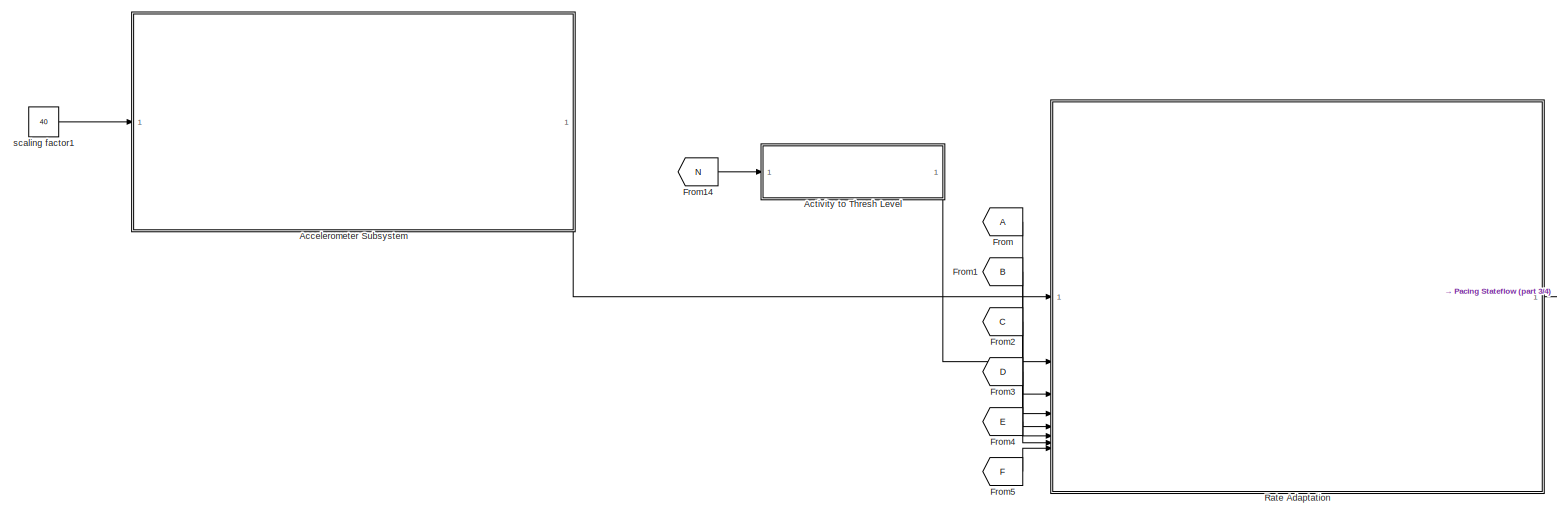
[diagram: root canvas - part 1/4, top left region]
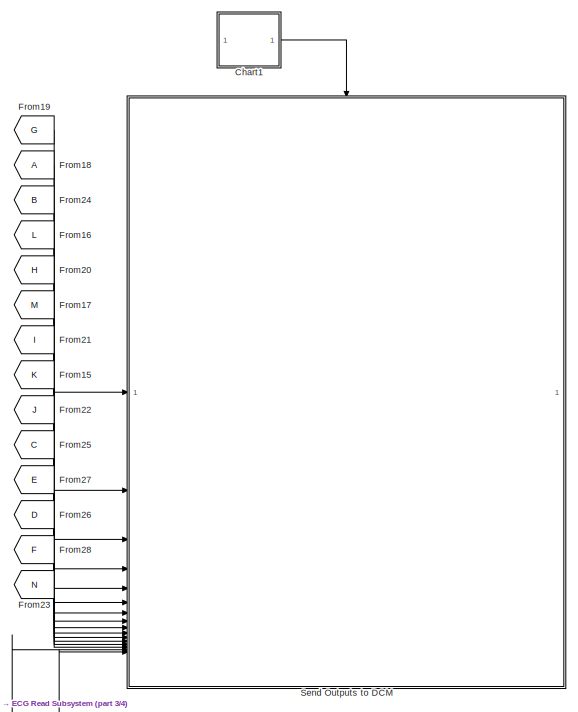
[diagram: root canvas - part 2/4, middle right region]
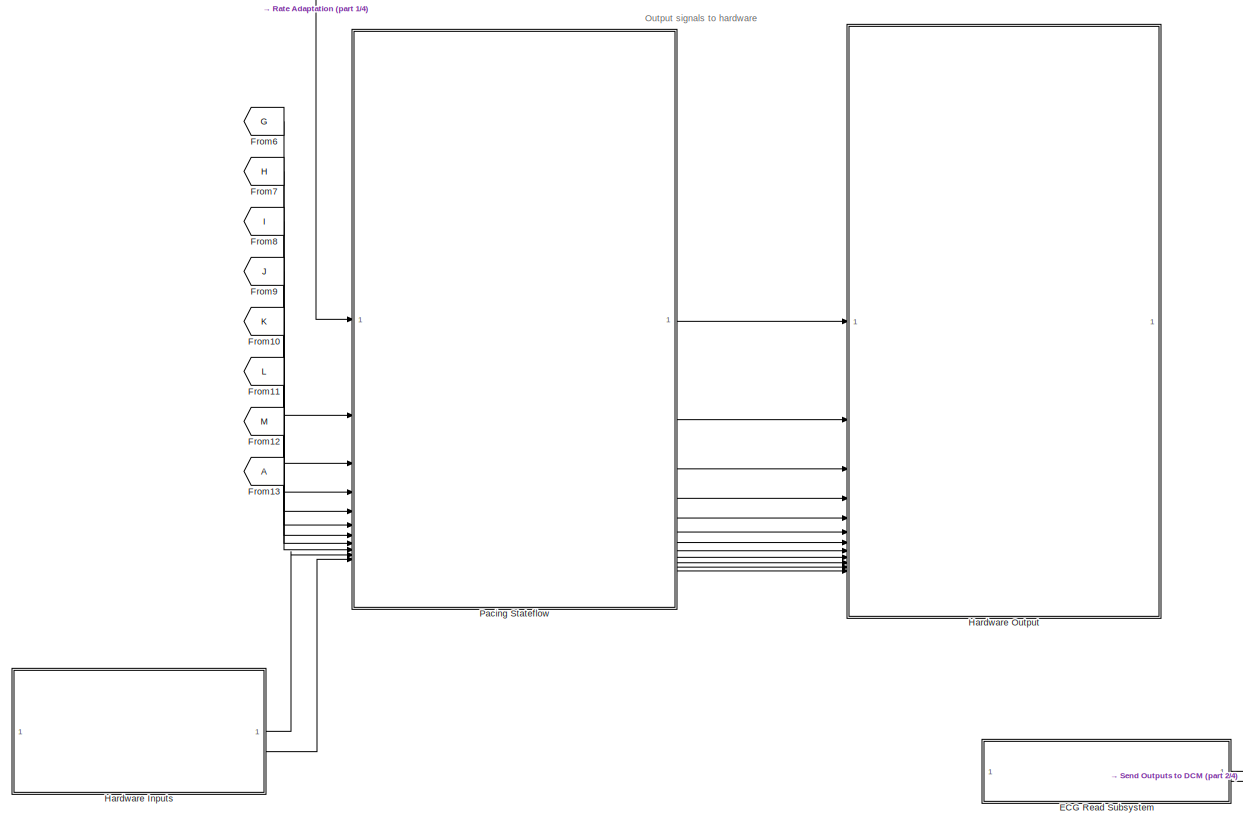
[diagram: root canvas - part 3/4, bottom center region]
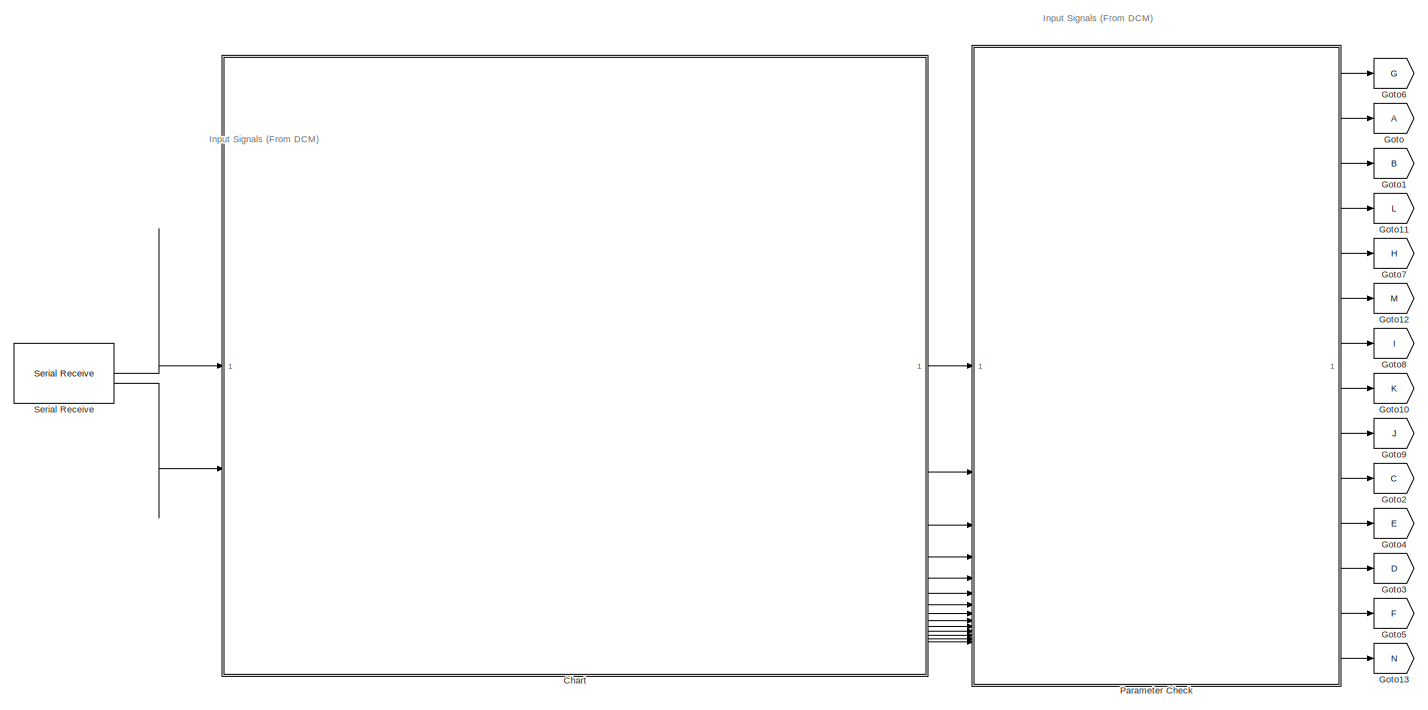
[diagram: root canvas - part 4/4, bottom left region]
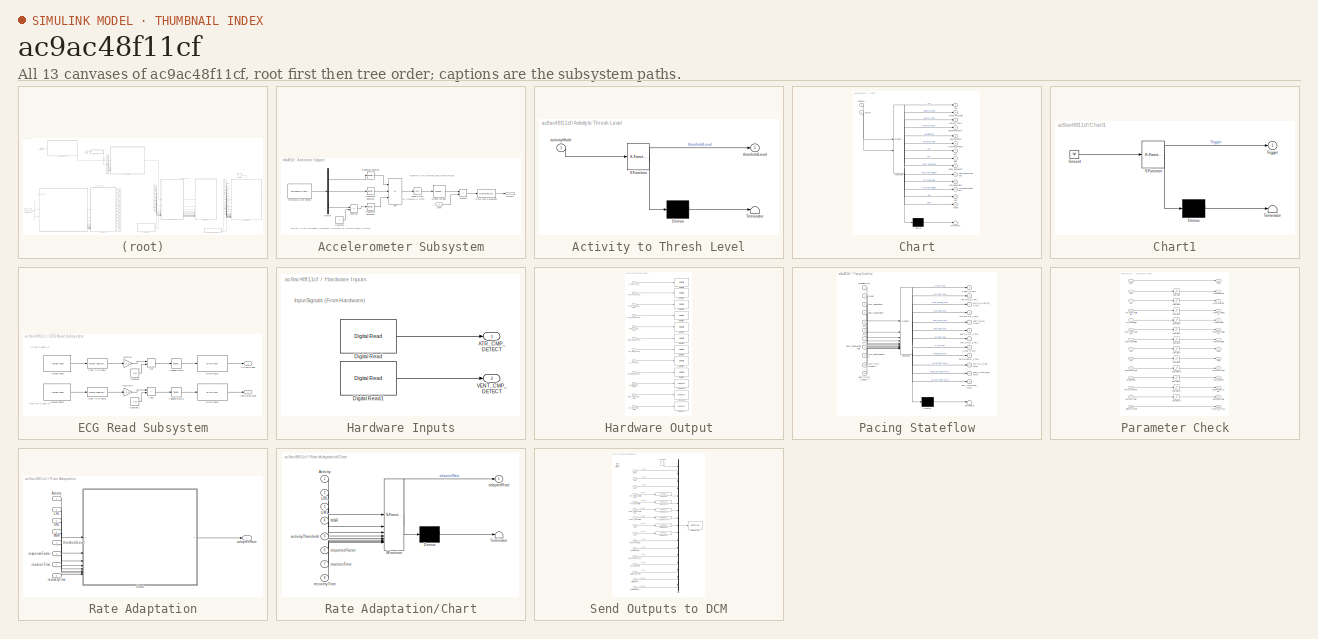
[diagram: thumbnail index - all 13 canvases of the model, root first then tree order]
MODEL slx_ac9ac48f11cf
KIND model
CONFIG AbsTol = auto
CONFIG EnableMultiTasking = on
CONFIG FixedStep = 1e-3
CONFIG MaxStep = auto
CONFIG MinStep = auto
CONFIG RelTol = 1e-3
CONFIG SampleTimeConstraint = Unconstrained
CONFIG SolverName = FixedStepAuto
CONFIG StartTime = 0.0
CONFIG StopTime = 10.0
BLOCK [SubSystem] Accelerometer Subsystem
BLOCK [Sum] Accelerometer Subsystem/Add
  IconShape = rectangular
  Inputs = +++
  OutDataTypeStr = single
BLOCK [Constant] Accelerometer Subsystem/Constant
BLOCK [DataTypeConversion] Accelerometer Subsystem/Data Type Conversion
  OutDataTypeStr = uint8
  RndMeth = Floor
  SaturateOnIntegerOverflow = off
BLOCK [Demux] Accelerometer Subsystem/Demux
  Outputs = 3
BLOCK [Reference] Accelerometer Subsystem/FXOS8700 6-Axes Sensor  REF=frdmk64flib/FXOS8700 6-Axes Sensor
  SourceBlock = frdmk64flib/FXOS8700 6-Axes Sensor
  SourceType = freedomk64f.fxos8700
BLOCK [Inport] Accelerometer Subsystem/Gain
BLOCK [Math] Accelerometer Subsystem/Magnitude Squared
  Operator = magnitude^2
  OutDataTypeStr = single
BLOCK [Math] Accelerometer Subsystem/Magnitude Squared1
  Operator = magnitude^2
  OutDataTypeStr = single
BLOCK [Math] Accelerometer Subsystem/Magnitude Squared2
  Operator = magnitude^2
  OutDataTypeStr = single
BLOCK [Reference] Accelerometer Subsystem/Moving Average  REF=dspstat3/Moving
Average
  SourceBlock = dspstat3/Moving\nAverage
  SourceType = dsp.simulink.MovingAverage
BLOCK [Outport] Accelerometer Subsystem/Outport
  OutDataTypeStr = uint8
BLOCK [Product] Accelerometer Subsystem/Product
BLOCK [Sqrt] Accelerometer Subsystem/Square Root
  OutDataTypeStr = single
BLOCK [Sum] Accelerometer Subsystem/Subtract
  IconShape = rectangular
  Inputs = +-
BLOCK [SubSystem] Activity to Thresh Level
  ErrorFcn = Stateflow.Translate.translate
  PermitHierarchicalResolution = ExplicitOnly
  SFBlockType = Chart
  TreatAsAtomicUnit = on
BLOCK [Demux] Activity to Thresh Level/ Demux 
  Outputs = 1
BLOCK [S-Function] Activity to Thresh Level/ SFunction 
  EnableBusSupport = on
  FunctionName = sf_sfun
  PortCounts = [1 2]
  SFcnIsStateOwnerBlock = off
  SFunctionDeploymentMode = off
  Tag = Stateflow S-Function 1
BLOCK [Terminator] Activity to Thresh Level/ Terminator 
BLOCK [Inport] Activity to Thresh Level/activityMode
BLOCK [Outport] Activity to Thresh Level/thresholdLevel
BLOCK [SubSystem] Chart
  ErrorFcn = Stateflow.Translate.translate
  PermitHierarchicalResolution = ExplicitOnly
  PortSchema = {"entries":[{"content":{"sides":[{"content":{"connectorIds":["In1","In2"]},"type":"ConnectorPlacement.EquallySpacedRectSide","uuid":"5dec20b2-4828-40f7-ab17-581616d768e4"},{"content":{"connectorIds":["Out14","Out1","Out13","Out12","Out11","Out10","Out9","Out8","Out7","Out6","Out5","Out4","Out3","Out2"],"side":"RIGHT"},"type":"ConnectorPlacement.EquallySpacedRectSide","uuid":"fe0d7708-8c60-4078-b2a...<+486ch>
  SFBlockType = Chart
  TreatAsAtomicUnit = on
BLOCK [Demux] Chart/ Demux 
  Outputs = 1
BLOCK [S-Function] Chart/ SFunction 
  EnableBusSupport = on
  FunctionName = sf_sfun
  PortCounts = [2 15]
  SFcnIsStateOwnerBlock = off
  SFunctionDeploymentMode = off
  Tag = Stateflow S-Function 2
BLOCK [Terminator] Chart/ Terminator 
BLOCK [Outport] Chart/ARP
  Port = 7
BLOCK [Outport] Chart/ATR_PulseAmplitude
  Port = 12
BLOCK [Outport] Chart/ATR_PulseWidth
  Port = 11
BLOCK [Outport] Chart/ActivityThreshold
  Port = 2
BLOCK [Outport] Chart/LRL
BLOCK [Outport] Chart/MaxSensorRate
  Port = 6
BLOCK [Outport] Chart/Mode
  Port = 14
BLOCK [Outport] Chart/ReactionTime
  Port = 5
BLOCK [Outport] Chart/RecoveryTime
  Port = 3
BLOCK [Outport] Chart/ResponseFactor
  Port = 4
BLOCK [Inport] Chart/RxData
BLOCK [Inport] Chart/Status
  Port = 2
BLOCK [Outport] Chart/URL
  Port = 13
BLOCK [Outport] Chart/VENT_PulseAmplitude
  Port = 10
BLOCK [Outport] Chart/VENT_PulseWidth
  Port = 9
BLOCK [Outport] Chart/VRP
  Port = 8
BLOCK [SubSystem] Chart1
  ErrorFcn = Stateflow.Translate.translate
  PermitHierarchicalResolution = ExplicitOnly
  SFBlockType = Chart
  TreatAsAtomicUnit = on
BLOCK [Demux] Chart1/ Demux 
  Outputs = 1
BLOCK [Ground] Chart1/ Ground 
BLOCK [S-Function] Chart1/ SFunction 
  EnableBusSupport = on
  FunctionName = sf_sfun
  PortCounts = [1 2]
  SFcnIsStateOwnerBlock = off
  SFunctionDeploymentMode = off
  Tag = Stateflow S-Function 6
BLOCK [Terminator] Chart1/ Terminator 
BLOCK [Outport] Chart1/Trigger
BLOCK [SubSystem] ECG Read Subsystem
BLOCK [Sum] ECG Read Subsystem/Add
  IconShape = rectangular
BLOCK [Sum] ECG Read Subsystem/Add1
  IconShape = rectangular
BLOCK [Reference] ECG Read Subsystem/Analog Input  REF=frdmk64flib/Analog Input
  SourceBlock = frdmk64flib/Analog Input
  SourceType = freedomk64f.AnalogInput
BLOCK [Reference] ECG Read Subsystem/Analog Input1  REF=frdmk64flib/Analog Input
  SourceBlock = frdmk64flib/Analog Input
  SourceType = freedomk64f.AnalogInput
BLOCK [Outport] ECG Read Subsystem/AtriumSignal
BLOCK [Reference] ECG Read Subsystem/Byte Pack2  REF=etargetslib/Byte Pack
  LibrarySourceBlock = embeddedtargetslib/Host Communication/Byte Pack
  SourceBlock = etargetslib/Byte Pack
  SourceType = Byte pack
BLOCK [Reference] ECG Read Subsystem/Byte Pack3  REF=etargetslib/Byte Pack
  LibrarySourceBlock = embeddedtargetslib/Host Communication/Byte Pack
  SourceBlock = etargetslib/Byte Pack
  SourceType = Byte pack
BLOCK [DataTypeConversion] ECG Read Subsystem/Cast To Single
  OutDataTypeStr = single
  RndMeth = Floor
  SaturateOnIntegerOverflow = off
BLOCK [DataTypeConversion] ECG Read Subsystem/Cast To Single1
  OutDataTypeStr = single
  RndMeth = Floor
  SaturateOnIntegerOverflow = off
BLOCK [Constant] ECG Read Subsystem/Constant
  OutDataTypeStr = single
  Value = 1.65
BLOCK [Constant] ECG Read Subsystem/Constant1
  OutDataTypeStr = single
  Value = 1.65
BLOCK [Gain] ECG Read Subsystem/Multiply
  Gain = -3.3
BLOCK [Gain] ECG Read Subsystem/Multiply1
  Gain = -3.3
BLOCK [Reference] ECG Read Subsystem/Tapped Delay  REF=simulink/Discrete/Tapped Delay
  SourceBlock = simulink/Discrete/Tapped Delay
  SourceType = Tapped Delay Line
BLOCK [Reference] ECG Read Subsystem/Tapped Delay1  REF=simulink/Discrete/Tapped Delay
  SourceBlock = simulink/Discrete/Tapped Delay
  SourceType = Tapped Delay Line
BLOCK [Outport] ECG Read Subsystem/VentricleSignal
  Port = 2
BLOCK [From] From
BLOCK [From] From1
  GotoTag = B
BLOCK [From] From10
  GotoTag = K
BLOCK [From] From11
  GotoTag = L
BLOCK [From] From12
  GotoTag = M
BLOCK [From] From13
BLOCK [From] From14
  GotoTag = N
BLOCK [From] From15
  GotoTag = K
BLOCK [From] From16
  GotoTag = L
BLOCK [From] From17
  GotoTag = M
BLOCK [From] From18
BLOCK [From] From19
  GotoTag = G
BLOCK [From] From2
  GotoTag = C
BLOCK [From] From20
  GotoTag = H
BLOCK [From] From21
  GotoTag = I
BLOCK [From] From22
  GotoTag = J
BLOCK [From] From23
  GotoTag = N
BLOCK [From] From24
  GotoTag = B
BLOCK [From] From25
  GotoTag = C
BLOCK [From] From26
  GotoTag = D
BLOCK [From] From27
  GotoTag = E
BLOCK [From] From28
  GotoTag = F
BLOCK [From] From3
  GotoTag = D
BLOCK [From] From4
  GotoTag = E
BLOCK [From] From5
  GotoTag = F
BLOCK [From] From6
  GotoTag = G
BLOCK [From] From7
  GotoTag = H
BLOCK [From] From8
  GotoTag = I
BLOCK [From] From9
  GotoTag = J
BLOCK [Goto] Goto
BLOCK [Goto] Goto1
  GotoTag = B
BLOCK [Goto] Goto10
  GotoTag = K
BLOCK [Goto] Goto11
  GotoTag = L
BLOCK [Goto] Goto12
  GotoTag = M
BLOCK [Goto] Goto13
  GotoTag = N
BLOCK [Goto] Goto2
  GotoTag = C
BLOCK [Goto] Goto3
  GotoTag = D
BLOCK [Goto] Goto4
  GotoTag = E
BLOCK [Goto] Goto5
  GotoTag = F
BLOCK [Goto] Goto6
  GotoTag = G
BLOCK [Goto] Goto7
  GotoTag = H
BLOCK [Goto] Goto8
  GotoTag = I
BLOCK [Goto] Goto9
  GotoTag = J
BLOCK [SubSystem] Hardware Inputs
BLOCK [Outport] Hardware Inputs/ATR_CMP_DETECT
BLOCK [Reference] Hardware Inputs/Digital Read  REF=frdmk64flib/Digital Read
  SourceBlock = frdmk64flib/Digital Read
  SourceType = freedomk64f.DigitalRead
BLOCK [Reference] Hardware Inputs/Digital Read1  REF=frdmk64flib/Digital Read
  SourceBlock = frdmk64flib/Digital Read
  SourceType = freedomk64f.DigitalRead
BLOCK [Outport] Hardware Inputs/VENT_CMP_DETECT
  Port = 2
BLOCK [SubSystem] Hardware Output
BLOCK [Inport] Hardware Output/ATR_CMP_REF_PWM
  Port = 12
BLOCK [Inport] Hardware Output/ATR_GND_CTRL
  Port = 7
BLOCK [Inport] Hardware Output/ATR_PACE_CTRL
  Port = 2
BLOCK [Reference] Hardware Output/Digital Write  REF=frdmk64flib/Digital Write
  SourceBlock = frdmk64flib/Digital Write
  SourceType = freedomk64f.DigitalWrite
BLOCK [Reference] Hardware Output/Digital Write1  REF=frdmk64flib/Digital Write
  SourceBlock = frdmk64flib/Digital Write
  SourceType = freedomk64f.DigitalWrite
BLOCK [Reference] Hardware Output/Digital Write2  REF=frdmk64flib/Digital Write
  SourceBlock = frdmk64flib/Digital Write
  SourceType = freedomk64f.DigitalWrite
BLOCK [Reference] Hardware Output/Digital Write3  REF=frdmk64flib/Digital Write
  SourceBlock = frdmk64flib/Digital Write
  SourceType = freedomk64f.DigitalWrite
BLOCK [Reference] Hardware Output/Digital Write4  REF=frdmk64flib/Digital Write
  SourceBlock = frdmk64flib/Digital Write
  SourceType = freedomk64f.DigitalWrite
BLOCK [Reference] Hardware Output/Digital Write5  REF=frdmk64flib/Digital Write
  SourceBlock = frdmk64flib/Digital Write
  SourceType = freedomk64f.DigitalWrite
BLOCK [Reference] Hardware Output/Digital Write6  REF=frdmk64flib/Digital Write
  SourceBlock = frdmk64flib/Digital Write
  SourceType = freedomk64f.DigitalWrite
BLOCK [Reference] Hardware Output/Digital Write7  REF=frdmk64flib/Digital Write
  SourceBlock = frdmk64flib/Digital Write
  SourceType = freedomk64f.DigitalWrite
BLOCK [Reference] Hardware Output/Digital Write9  REF=frdmk64flib/Digital Write
  SourceBlock = frdmk64flib/Digital Write
  SourceType = freedomk64f.DigitalWrite
BLOCK [Inport] Hardware Output/FRONTEND_CTRL
  Port = 9
BLOCK [Inport] Hardware Output/PACE_CHARGE_CTRL
  Port = 3
BLOCK [Inport] Hardware Output/PACE_GND_CTRL
  Port = 4
BLOCK [Inport] Hardware Output/PACING_REF_PWM
  Port = 10
BLOCK [Reference] Hardware Output/PWM Output  REF=frdmk64flib/PWM Output
  SourceBlock = frdmk64flib/PWM Output
  SourceType = freedomk64f.PWMOutput
BLOCK [Reference] Hardware Output/PWM Output1  REF=frdmk64flib/PWM Output
  SourceBlock = frdmk64flib/PWM Output
  SourceType = freedomk64f.PWMOutput
BLOCK [Reference] Hardware Output/PWM Output2  REF=frdmk64flib/PWM Output
  SourceBlock = frdmk64flib/PWM Output
  SourceType = freedomk64f.PWMOutput
BLOCK [Inport] Hardware Output/VENT_CMP_REF_PWM
  Port = 11
BLOCK [Inport] Hardware Output/VENT_GND_CTRL
  Port = 6
BLOCK [Inport] Hardware Output/VENT_PACE_CTRL
  Port = 5
BLOCK [Inport] Hardware Output/Z_ATR_CTRL
  Port = 8
BLOCK [Inport] Hardware Output/Z_VENT_CTRL
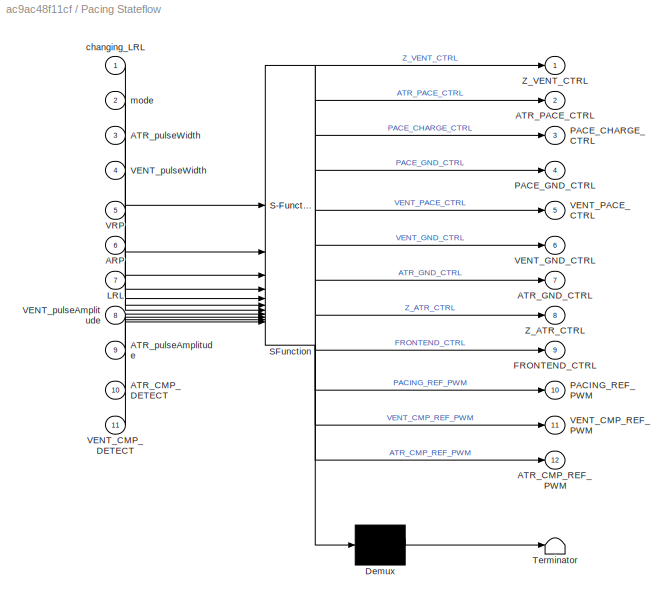
BLOCK [SubSystem] Pacing Stateflow
  ErrorFcn = Stateflow.Translate.translate
  PermitHierarchicalResolution = ExplicitOnly
  PortSchema = {"entries":[{"content":{"sides":[{"content":{"connectorIds":["In1","In2","In3","In4","In6","In5","In9","In8","In7","In10","In11"]},"type":"ConnectorPlacement.EquallySpacedRectSide","uuid":"576c6451-25f7-4bf9-8ba9-b62bfe0038eb"},{"content":{"connectorIds":["Out1","Out2","Out3","Out4","Out5","Out6","Out7","Out8","Out9","Out10","Out11","Out12"],"side":"RIGHT"},"type":"ConnectorPlacement.EquallySpaced...<+526ch>
  SFBlockType = Chart
  TreatAsAtomicUnit = on
BLOCK [Demux] Pacing Stateflow/ Demux 
  Outputs = 1
BLOCK [S-Function] Pacing Stateflow/ SFunction 
  EnableBusSupport = on
  FunctionName = sf_sfun
  PortCounts = [11 13]
  SFcnIsStateOwnerBlock = off
  SFunctionDeploymentMode = off
  Tag = Stateflow S-Function 3
BLOCK [Terminator] Pacing Stateflow/ Terminator 
BLOCK [Inport] Pacing Stateflow/ARP
  Port = 6
BLOCK [Inport] Pacing Stateflow/ATR_CMP_DETECT
  Port = 10
BLOCK [Outport] Pacing Stateflow/ATR_CMP_REF_PWM
  Port = 12
BLOCK [Outport] Pacing Stateflow/ATR_GND_CTRL
  Port = 7
BLOCK [Outport] Pacing Stateflow/ATR_PACE_CTRL
  Port = 2
BLOCK [Inport] Pacing Stateflow/ATR_pulseAmplitude
  Port = 9
BLOCK [Inport] Pacing Stateflow/ATR_pulseWidth
  Port = 3
BLOCK [Outport] Pacing Stateflow/FRONTEND_CTRL
  Port = 9
BLOCK [Inport] Pacing Stateflow/LRL
  Port = 7
BLOCK [Outport] Pacing Stateflow/PACE_CHARGE_CTRL
  Port = 3
BLOCK [Outport] Pacing Stateflow/PACE_GND_CTRL
  Port = 4
BLOCK [Outport] Pacing Stateflow/PACING_REF_PWM
  Port = 10
BLOCK [Inport] Pacing Stateflow/VENT_CMP_DETECT
  Port = 11
BLOCK [Outport] Pacing Stateflow/VENT_CMP_REF_PWM
  Port = 11
BLOCK [Outport] Pacing Stateflow/VENT_GND_CTRL
  Port = 6
BLOCK [Outport] Pacing Stateflow/VENT_PACE_CTRL
  Port = 5
BLOCK [Inport] Pacing Stateflow/VENT_pulseAmplitude
  Port = 8
BLOCK [Inport] Pacing Stateflow/VENT_pulseWidth
  Port = 4
BLOCK [Inport] Pacing Stateflow/VRP
  Port = 5
BLOCK [Outport] Pacing Stateflow/Z_ATR_CTRL
  Port = 8
BLOCK [Outport] Pacing Stateflow/Z_VENT_CTRL
BLOCK [Inport] Pacing Stateflow/changing_LRL
BLOCK [Inport] Pacing Stateflow/mode
  Port = 2
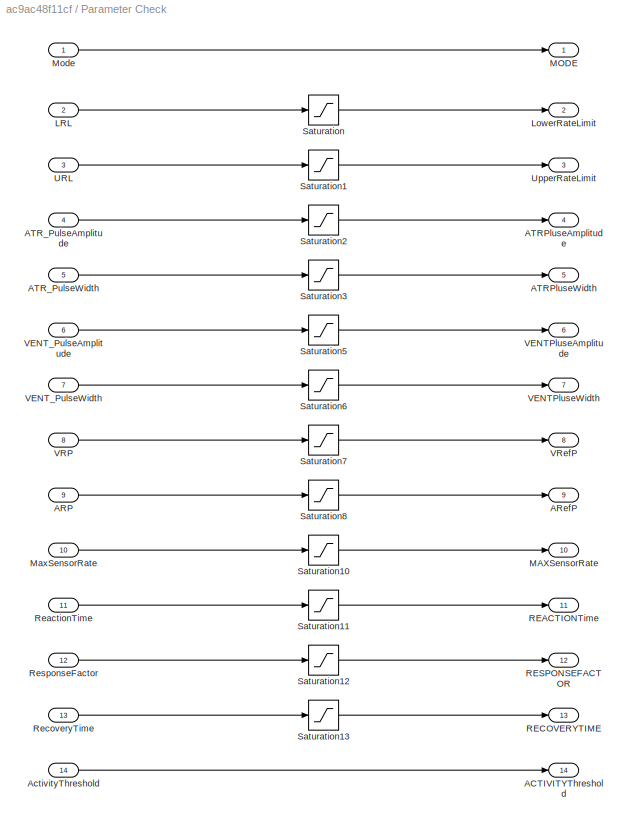
BLOCK [SubSystem] Parameter Check
BLOCK [Outport] Parameter Check/ACTIVITYThreshold
  Port = 14
BLOCK [Inport] Parameter Check/ARP
  Port = 9
BLOCK [Outport] Parameter Check/ARefP
  Port = 9
BLOCK [Outport] Parameter Check/ATRPluseAmplitude
  OutDataTypeStr = single
  Port = 4
BLOCK [Outport] Parameter Check/ATRPluseWidth
  Port = 5
BLOCK [Inport] Parameter Check/ATR_PulseAmplitude 
  OutDataTypeStr = single
  Port = 4
BLOCK [Inport] Parameter Check/ATR_PulseWidth 
  Port = 5
BLOCK [Inport] Parameter Check/ActivityThreshold 
  Port = 14
BLOCK [Inport] Parameter Check/LRL
  Port = 2
BLOCK [Outport] Parameter Check/LowerRateLimit
  Port = 2
BLOCK [Outport] Parameter Check/MAXSensorRate
  Port = 10
BLOCK [Outport] Parameter Check/MODE
BLOCK [Inport] Parameter Check/MaxSensorRate 
  Port = 10
BLOCK [Inport] Parameter Check/Mode
BLOCK [Outport] Parameter Check/REACTIONTime
  Port = 11
BLOCK [Outport] Parameter Check/RECOVERYTIME
  Port = 13
BLOCK [Outport] Parameter Check/RESPONSEFACTOR
  Port = 12
BLOCK [Inport] Parameter Check/ReactionTime 
  Port = 11
BLOCK [Inport] Parameter Check/RecoveryTime 
  Port = 13
BLOCK [Inport] Parameter Check/ResponseFactor 
  Port = 12
BLOCK [Saturate] Parameter Check/Saturation
  LowerLimit = 30
  UpperLimit = 175
BLOCK [Saturate] Parameter Check/Saturation1
  LowerLimit = 60
  UpperLimit = 175
BLOCK [Saturate] Parameter Check/Saturation10
  LowerLimit = 50
  UpperLimit = 175
BLOCK [Saturate] Parameter Check/Saturation11
  LowerLimit = 10
  UpperLimit = 50
BLOCK [Saturate] Parameter Check/Saturation12
  LowerLimit = 1
  UpperLimit = 16
BLOCK [Saturate] Parameter Check/Saturation13
  LowerLimit = 2
  UpperLimit = 16
BLOCK [Saturate] Parameter Check/Saturation2
  LowerLimit = 0.5
  UpperLimit = 5
BLOCK [Saturate] Parameter Check/Saturation3
  LowerLimit = 0.05
  UpperLimit = 1.9
BLOCK [Saturate] Parameter Check/Saturation5
  LowerLimit = 0.5
  UpperLimit = 5
BLOCK [Saturate] Parameter Check/Saturation6
  LowerLimit = 0.05
  UpperLimit = 1.9
BLOCK [Saturate] Parameter Check/Saturation7
  LowerLimit = 150
  UpperLimit = 500
BLOCK [Saturate] Parameter Check/Saturation8
  LowerLimit = 150
  UpperLimit = 500
BLOCK [Inport] Parameter Check/URL
  Port = 3
BLOCK [Outport] Parameter Check/UpperRateLimit
  Port = 3
BLOCK [Outport] Parameter Check/VENTPluseAmplitude
  Port = 6
BLOCK [Outport] Parameter Check/VENTPluseWidth
  Port = 7
BLOCK [Inport] Parameter Check/VENT_PulseAmplitude 
  Port = 6
BLOCK [Inport] Parameter Check/VENT_PulseWidth 
  Port = 7
BLOCK [Inport] Parameter Check/VRP
  Port = 8
BLOCK [Outport] Parameter Check/VRefP
  Port = 8
BLOCK [SubSystem] Rate Adaptation
BLOCK [Inport] Rate Adaptation/Activity
  OutDataTypeStr = uint8
BLOCK [SubSystem] Rate Adaptation/Chart
  ErrorFcn = Stateflow.Translate.translate
  PermitHierarchicalResolution = ExplicitOnly
  SFBlockType = Chart
  TreatAsAtomicUnit = on
BLOCK [Demux] Rate Adaptation/Chart/ Demux 
  Outputs = 1
BLOCK [S-Function] Rate Adaptation/Chart/ SFunction 
  EnableBusSupport = on
  FunctionName = sf_sfun
  PortCounts = [8 2]
  SFcnIsStateOwnerBlock = off
  SFunctionDeploymentMode = off
  Tag = Stateflow S-Function 5
BLOCK [Terminator] Rate Adaptation/Chart/ Terminator 
BLOCK [Inport] Rate Adaptation/Chart/Activity
BLOCK [Inport] Rate Adaptation/Chart/LRL
  Port = 2
BLOCK [Inport] Rate Adaptation/Chart/MSR
  Port = 4
BLOCK [Inport] Rate Adaptation/Chart/URL
  Port = 3
BLOCK [Inport] Rate Adaptation/Chart/activityThreshold
  Port = 5
BLOCK [Outport] Rate Adaptation/Chart/adaptedRate
BLOCK [Inport] Rate Adaptation/Chart/reactionTime
  Port = 7
BLOCK [Inport] Rate Adaptation/Chart/recoveryTime
  Port = 8
BLOCK [Inport] Rate Adaptation/Chart/responseFactor
  Port = 6
BLOCK [Inport] Rate Adaptation/LRL
  OutDataTypeStr = uint8
  Port = 3
BLOCK [Inport] Rate Adaptation/MSR
  Port = 5
BLOCK [Inport] Rate Adaptation/URL
  OutDataTypeStr = uint8
  Port = 4
BLOCK [Outport] Rate Adaptation/adaptedRate
BLOCK [Inport] Rate Adaptation/reactionTime
  Port = 7
BLOCK [Inport] Rate Adaptation/recoveryTime
  Port = 8
BLOCK [Inport] Rate Adaptation/responseFactor
  Port = 6
BLOCK [Inport] Rate Adaptation/thresholdLevel
  Port = 2
BLOCK [SubSystem] Send Outputs to DCM
BLOCK [Inport] Send Outputs to DCM/ARP
  Port = 9
BLOCK [Inport] Send Outputs to DCM/ATR_PulseAmplitude
  OutDataTypeStr = single
  Port = 4
BLOCK [Inport] Send Outputs to DCM/ATR_PulseWidth
  OutDataTypeStr = single
  Port = 5
BLOCK [Inport] Send Outputs to DCM/ActivityThreshold
  Port = 14
BLOCK [Inport] Send Outputs to DCM/AtriumSignal
  Port = 15
BLOCK [Reference] Send Outputs to DCM/Byte Pack  REF=etargetslib/Byte Pack
  LibrarySourceBlock = embeddedtargetslib/Host Communication/Byte Pack
  SourceBlock = etargetslib/Byte Pack
  SourceType = Byte pack
BLOCK [Reference] Send Outputs to DCM/Byte Pack1  REF=etargetslib/Byte Pack
  LibrarySourceBlock = embeddedtargetslib/Host Communication/Byte Pack
  SourceBlock = etargetslib/Byte Pack
  SourceType = Byte pack
BLOCK [Reference] Send Outputs to DCM/Byte Pack3  REF=etargetslib/Byte Pack
  LibrarySourceBlock = embeddedtargetslib/Host Communication/Byte Pack
  SourceBlock = etargetslib/Byte Pack
  SourceType = Byte pack
BLOCK [Reference] Send Outputs to DCM/Byte Pack4  REF=etargetslib/Byte Pack
  LibrarySourceBlock = embeddedtargetslib/Host Communication/Byte Pack
  SourceBlock = etargetslib/Byte Pack
  SourceType = Byte pack
BLOCK [Reference] Send Outputs to DCM/Byte Pack6  REF=etargetslib/Byte Pack
  LibrarySourceBlock = embeddedtargetslib/Host Communication/Byte Pack
  SourceBlock = etargetslib/Byte Pack
  SourceType = Byte pack
BLOCK [Reference] Send Outputs to DCM/Byte Pack7  REF=etargetslib/Byte Pack
  LibrarySourceBlock = embeddedtargetslib/Host Communication/Byte Pack
  SourceBlock = etargetslib/Byte Pack
  SourceType = Byte pack
BLOCK [Inport] Send Outputs to DCM/LRL
  Port = 2
BLOCK [Inport] Send Outputs to DCM/MaxSensorRate
  Port = 10
BLOCK [Inport] Send Outputs to DCM/Mode
BLOCK [Mux] Send Outputs to DCM/Mux
  DisplayOption = bar
  Inputs = 17
BLOCK [Inport] Send Outputs to DCM/ReactionTime
  Port = 11
BLOCK [Inport] Send Outputs to DCM/RecoveryTime
  Port = 13
BLOCK [Inport] Send Outputs to DCM/ResponseFactor
  Port = 12
BLOCK [Reference] Send Outputs to DCM/Serial Transmit  REF=frdmk64flib/Serial Transmit
  SourceBlock = frdmk64flib/Serial Transmit
  SourceType = freedomk64f.SCIWrite
BLOCK [Constant] Send Outputs to DCM/Sync Byte
  OutDataTypeStr = uint8
  Value = 7
BLOCK [TriggerPort] Send Outputs to DCM/Trigger
  FunctionName = UART_Tx
  PortDimensions = 1
  StatesWhenEnabling = held
  VariantControl = (inherit)
BLOCK [Inport] Send Outputs to DCM/URL
  Port = 3
BLOCK [Inport] Send Outputs to DCM/VENT_PulseAmplitude
  Port = 6
BLOCK [Inport] Send Outputs to DCM/VENT_PulseWidth
  Port = 7
BLOCK [Inport] Send Outputs to DCM/VRP
  Port = 8
BLOCK [Inport] Send Outputs to DCM/VentricleSignal
  Port = 16
BLOCK [Reference] Serial Receive  REF=frdmk64flib/Serial Receive
  SourceBlock = frdmk64flib/Serial Receive
  SourceType = freedomk64f.SCIRead
BLOCK [Constant] scaling factor1
  Value = 40
ANNOTATION (root): Output signals to hardware
ANNOTATION (root): Input Signals (From DCM)
ANNOTATION Accelerometer Subsystem: subtract 1 from normalized z component to account for constant impact of gravity
ANNOTATION Accelerometer Subsystem: get magnitude of activity
ANNOTATION Accelerometer Subsystem: implement rate smoothing using moving average
ANNOTATION ECG Read Subsystem: Ventricle Signal In
ANNOTATION ECG Read Subsystem: Atrium Signal In
ANNOTATION Hardware Inputs: Input Signals (From Hardware)
ANNOTATION Send Outputs to DCM: 1 byte
ANNOTATION Send Outputs to DCM: 40 bytes
ANNOTATION Send Outputs to DCM: 2 bytes
ANNOTATION Send Outputs to DCM: 4 bytes
LINE Accelerometer Subsystem/Add:1 -> Accelerometer Subsystem/Square Root:1
LINE Accelerometer Subsystem/Constant:1 -> Accelerometer Subsystem/Subtract:2
LINE Accelerometer Subsystem/Data Type Conversion:1 -> Accelerometer Subsystem/Outport:1
LINE Accelerometer Subsystem/Demux:1 -> Accelerometer Subsystem/Magnitude Squared:1
LINE Accelerometer Subsystem/Demux:2 -> Accelerometer Subsystem/Magnitude Squared1:1
LINE Accelerometer Subsystem/Demux:3 -> Accelerometer Subsystem/Subtract:1
LINE Accelerometer Subsystem/FXOS8700 6-Axes Sensor:1 -> Accelerometer Subsystem/Demux:1
LINE Accelerometer Subsystem/Gain:1 -> Accelerometer Subsystem/Product:2
LINE Accelerometer Subsystem/Magnitude Squared1:1 -> Accelerometer Subsystem/Add:2
LINE Accelerometer Subsystem/Magnitude Squared2:1 -> Accelerometer Subsystem/Add:3
LINE Accelerometer Subsystem/Magnitude Squared:1 -> Accelerometer Subsystem/Add:1
LINE Accelerometer Subsystem/Moving Average:1 -> Accelerometer Subsystem/Product:1
LINE Accelerometer Subsystem/Product:1 -> Accelerometer Subsystem/Data Type Conversion:1
LINE Accelerometer Subsystem/Square Root:1 -> Accelerometer Subsystem/Moving Average:1
LINE Accelerometer Subsystem/Subtract:1 -> Accelerometer Subsystem/Magnitude Squared2:1
LINE Accelerometer Subsystem:1 -> Rate Adaptation:1
LINE Activity to Thresh Level:1 -> Rate Adaptation:2
LINE Chart1:1 -> Send Outputs to DCM:trigger
LINE Chart:1 -> Parameter Check:2
LINE Chart:10 -> Parameter Check:6
LINE Chart:11 -> Parameter Check:5
LINE Chart:12 -> Parameter Check:4
LINE Chart:13 -> Parameter Check:3
LINE Chart:14 -> Parameter Check:1
LINE Chart:2 -> Parameter Check:14
LINE Chart:3 -> Parameter Check:13
LINE Chart:4 -> Parameter Check:12
LINE Chart:5 -> Parameter Check:11
LINE Chart:6 -> Parameter Check:10
LINE Chart:7 -> Parameter Check:9
LINE Chart:8 -> Parameter Check:8
LINE Chart:9 -> Parameter Check:7
LINE ECG Read Subsystem/Add1:1 -> ECG Read Subsystem/Tapped Delay1:1
LINE ECG Read Subsystem/Add:1 -> ECG Read Subsystem/Tapped Delay:1
LINE ECG Read Subsystem/Analog Input1:1 -> ECG Read Subsystem/Cast To Single1:1
LINE ECG Read Subsystem/Analog Input:1 -> ECG Read Subsystem/Cast To Single:1
LINE ECG Read Subsystem/Byte Pack2:1 -> ECG Read Subsystem/AtriumSignal:1
LINE ECG Read Subsystem/Byte Pack3:1 -> ECG Read Subsystem/VentricleSignal:1
LINE ECG Read Subsystem/Cast To Single1:1 -> ECG Read Subsystem/Multiply1:1
LINE ECG Read Subsystem/Cast To Single:1 -> ECG Read Subsystem/Multiply:1
LINE ECG Read Subsystem/Constant1:1 -> ECG Read Subsystem/Add1:2
LINE ECG Read Subsystem/Constant:1 -> ECG Read Subsystem/Add:2
LINE ECG Read Subsystem/Multiply1:1 -> ECG Read Subsystem/Add1:1
LINE ECG Read Subsystem/Multiply:1 -> ECG Read Subsystem/Add:1
LINE ECG Read Subsystem/Tapped Delay1:1 -> ECG Read Subsystem/Byte Pack3:1
LINE ECG Read Subsystem/Tapped Delay:1 -> ECG Read Subsystem/Byte Pack2:1
LINE ECG Read Subsystem:1 -> Send Outputs to DCM:15
LINE ECG Read Subsystem:2 -> Send Outputs to DCM:16
LINE From10:1 -> Pacing Stateflow:5
LINE From11:1 -> Pacing Stateflow:9
LINE From12:1 -> Pacing Stateflow:8
LINE From13:1 -> Pacing Stateflow:7
LINE From14:1 -> Activity to Thresh Level:1
LINE From15:1 -> Send Outputs to DCM:8
LINE From16:1 -> Send Outputs to DCM:4
LINE From17:1 -> Send Outputs to DCM:6
LINE From18:1 -> Send Outputs to DCM:2
LINE From19:1 -> Send Outputs to DCM:1
LINE From1:1 -> Rate Adaptation:4
LINE From20:1 -> Send Outputs to DCM:5
LINE From21:1 -> Send Outputs to DCM:7
LINE From22:1 -> Send Outputs to DCM:9
LINE From23:1 -> Send Outputs to DCM:14
LINE From24:1 -> Send Outputs to DCM:3
LINE From25:1 -> Send Outputs to DCM:10
LINE From26:1 -> Send Outputs to DCM:12
LINE From27:1 -> Send Outputs to DCM:11
LINE From28:1 -> Send Outputs to DCM:13
LINE From2:1 -> Rate Adaptation:5
LINE From3:1 -> Rate Adaptation:6
LINE From4:1 -> Rate Adaptation:7
LINE From5:1 -> Rate Adaptation:8
LINE From6:1 -> Pacing Stateflow:2
LINE From7:1 -> Pacing Stateflow:3
LINE From8:1 -> Pacing Stateflow:4
LINE From9:1 -> Pacing Stateflow:6
LINE From:1 -> Rate Adaptation:3
LINE Hardware Inputs/Digital Read1:1 -> Hardware Inputs/VENT_CMP_DETECT:1
LINE Hardware Inputs/Digital Read:1 -> Hardware Inputs/ATR_CMP_DETECT:1
LINE Hardware Inputs:1 -> Pacing Stateflow:10
LINE Hardware Inputs:2 -> Pacing Stateflow:11
LINE Hardware Output/ATR_CMP_REF_PWM:1 -> Hardware Output/PWM Output:1
LINE Hardware Output/ATR_GND_CTRL:1 -> Hardware Output/Digital Write6:1
LINE Hardware Output/ATR_PACE_CTRL:1 -> Hardware Output/Digital Write1:1
LINE Hardware Output/FRONTEND_CTRL:1 -> Hardware Output/Digital Write9:1
LINE Hardware Output/PACE_CHARGE_CTRL:1 -> Hardware Output/Digital Write2:1
LINE Hardware Output/PACE_GND_CTRL:1 -> Hardware Output/Digital Write3:1
LINE Hardware Output/PACING_REF_PWM:1 -> Hardware Output/PWM Output2:1
LINE Hardware Output/VENT_CMP_REF_PWM:1 -> Hardware Output/PWM Output1:1
LINE Hardware Output/VENT_GND_CTRL:1 -> Hardware Output/Digital Write5:1
LINE Hardware Output/VENT_PACE_CTRL:1 -> Hardware Output/Digital Write4:1
LINE Hardware Output/Z_ATR_CTRL:1 -> Hardware Output/Digital Write7:1
LINE Hardware Output/Z_VENT_CTRL:1 -> Hardware Output/Digital Write:1
LINE Pacing Stateflow:1 -> Hardware Output:1
LINE Pacing Stateflow:10 -> Hardware Output:10
LINE Pacing Stateflow:11 -> Hardware Output:11
LINE Pacing Stateflow:12 -> Hardware Output:12
LINE Pacing Stateflow:2 -> Hardware Output:2
LINE Pacing Stateflow:3 -> Hardware Output:3
LINE Pacing Stateflow:4 -> Hardware Output:4
LINE Pacing Stateflow:5 -> Hardware Output:5
LINE Pacing Stateflow:6 -> Hardware Output:6
LINE Pacing Stateflow:7 -> Hardware Output:7
LINE Pacing Stateflow:8 -> Hardware Output:8
LINE Pacing Stateflow:9 -> Hardware Output:9
LINE Parameter Check/ARP:1 -> Parameter Check/Saturation8:1
LINE Parameter Check/ATR_PulseAmplitude :1 -> Parameter Check/Saturation2:1
LINE Parameter Check/ATR_PulseWidth :1 -> Parameter Check/Saturation3:1
LINE Parameter Check/ActivityThreshold :1 -> Parameter Check/ACTIVITYThreshold:1
LINE Parameter Check/LRL:1 -> Parameter Check/Saturation:1
LINE Parameter Check/MaxSensorRate :1 -> Parameter Check/Saturation10:1
LINE Parameter Check/Mode:1 -> Parameter Check/MODE:1
LINE Parameter Check/ReactionTime :1 -> Parameter Check/Saturation11:1
LINE Parameter Check/RecoveryTime :1 -> Parameter Check/Saturation13:1
LINE Parameter Check/ResponseFactor :1 -> Parameter Check/Saturation12:1
LINE Parameter Check/Saturation10:1 -> Parameter Check/MAXSensorRate:1
LINE Parameter Check/Saturation11:1 -> Parameter Check/REACTIONTime:1
LINE Parameter Check/Saturation12:1 -> Parameter Check/RESPONSEFACTOR:1
LINE Parameter Check/Saturation13:1 -> Parameter Check/RECOVERYTIME:1
LINE Parameter Check/Saturation1:1 -> Parameter Check/UpperRateLimit:1
LINE Parameter Check/Saturation2:1 -> Parameter Check/ATRPluseAmplitude:1
LINE Parameter Check/Saturation3:1 -> Parameter Check/ATRPluseWidth:1
LINE Parameter Check/Saturation5:1 -> Parameter Check/VENTPluseAmplitude:1
LINE Parameter Check/Saturation6:1 -> Parameter Check/VENTPluseWidth:1
LINE Parameter Check/Saturation7:1 -> Parameter Check/VRefP:1
LINE Parameter Check/Saturation8:1 -> Parameter Check/ARefP:1
LINE Parameter Check/Saturation:1 -> Parameter Check/LowerRateLimit:1
LINE Parameter Check/URL:1 -> Parameter Check/Saturation1:1
LINE Parameter Check/VENT_PulseAmplitude :1 -> Parameter Check/Saturation5:1
LINE Parameter Check/VENT_PulseWidth :1 -> Parameter Check/Saturation6:1
LINE Parameter Check/VRP:1 -> Parameter Check/Saturation7:1
LINE Parameter Check:1 -> Goto6:1
LINE Parameter Check:10 -> Goto2:1
LINE Parameter Check:11 -> Goto4:1
LINE Parameter Check:12 -> Goto3:1
LINE Parameter Check:13 -> Goto5:1
LINE Parameter Check:14 -> Goto13:1
LINE Parameter Check:2 -> Goto:1
LINE Parameter Check:3 -> Goto1:1
LINE Parameter Check:4 -> Goto11:1
LINE Parameter Check:5 -> Goto7:1
LINE Parameter Check:6 -> Goto12:1
LINE Parameter Check:7 -> Goto8:1
LINE Parameter Check:8 -> Goto10:1
LINE Parameter Check:9 -> Goto9:1
LINE Rate Adaptation/Activity:1 -> Rate Adaptation/Chart:1
LINE Rate Adaptation/Chart:1 -> Rate Adaptation/adaptedRate:1
LINE Rate Adaptation/LRL:1 -> Rate Adaptation/Chart:2
LINE Rate Adaptation/MSR:1 -> Rate Adaptation/Chart:4
LINE Rate Adaptation/URL:1 -> Rate Adaptation/Chart:3
LINE Rate Adaptation/reactionTime:1 -> Rate Adaptation/Chart:7
LINE Rate Adaptation/recoveryTime:1 -> Rate Adaptation/Chart:8
LINE Rate Adaptation/responseFactor:1 -> Rate Adaptation/Chart:6
LINE Rate Adaptation/thresholdLevel:1 -> Rate Adaptation/Chart:5
LINE Rate Adaptation:1 -> Pacing Stateflow:1
LINE Send Outputs to DCM/ARP:1 -> Send Outputs to DCM/Byte Pack7:1
LINE Send Outputs to DCM/ATR_PulseAmplitude:1 -> Send Outputs to DCM/Byte Pack:1
LINE Send Outputs to DCM/ATR_PulseWidth:1 -> Send Outputs to DCM/Byte Pack1:1
LINE Send Outputs to DCM/ActivityThreshold:1 -> Send Outputs to DCM/Mux:15
LINE Send Outputs to DCM/AtriumSignal:1 -> Send Outputs to DCM/Mux:16
LINE Send Outputs to DCM/Byte Pack1:1 -> Send Outputs to DCM/Mux:6
LINE Send Outputs to DCM/Byte Pack3:1 -> Send Outputs to DCM/Mux:7
LINE Send Outputs to DCM/Byte Pack4:1 -> Send Outputs to DCM/Mux:8
LINE Send Outputs to DCM/Byte Pack6:1 -> Send Outputs to DCM/Mux:9
LINE Send Outputs to DCM/Byte Pack7:1 -> Send Outputs to DCM/Mux:10
LINE Send Outputs to DCM/Byte Pack:1 -> Send Outputs to DCM/Mux:5
LINE Send Outputs to DCM/LRL:1 -> Send Outputs to DCM/Mux:3
LINE Send Outputs to DCM/MaxSensorRate:1 -> Send Outputs to DCM/Mux:11
LINE Send Outputs to DCM/Mode:1 -> Send Outputs to DCM/Mux:2
LINE Send Outputs to DCM/Mux:1 -> Send Outputs to DCM/Serial Transmit:1
LINE Send Outputs to DCM/ReactionTime:1 -> Send Outputs to DCM/Mux:12
LINE Send Outputs to DCM/RecoveryTime:1 -> Send Outputs to DCM/Mux:14
LINE Send Outputs to DCM/ResponseFactor:1 -> Send Outputs to DCM/Mux:13
LINE Send Outputs to DCM/Sync Byte:1 -> Send Outputs to DCM/Mux:1
LINE Send Outputs to DCM/URL:1 -> Send Outputs to DCM/Mux:4
LINE Send Outputs to DCM/VENT_PulseAmplitude:1 -> Send Outputs to DCM/Byte Pack3:1
LINE Send Outputs to DCM/VENT_PulseWidth:1 -> Send Outputs to DCM/Byte Pack4:1
LINE Send Outputs to DCM/VRP:1 -> Send Outputs to DCM/Byte Pack6:1
LINE Send Outputs to DCM/VentricleSignal:1 -> Send Outputs to DCM/Mux:17
LINE Serial Receive:1 -> Chart:1
LINE Serial Receive:2 -> Chart:2
LINE scaling factor1:1 -> Accelerometer Subsystem:1
CHART Activity to Thresh Level states=1 transitions=2
  STATE_LABEL 'Activity_to_Threshold\nentry:\n%very low\nif activityMode == 0\n    thresholdLevel = 5;\nend\n%low\nif activityMode == 1\n    thresholdLevel = 13;\nend\n%med low\nif activityMode == 2\n    thresholdLevel = 21;\nend\n%med\nif activityMode == 3\n    thresholdLevel = 29;\nend\n%med high\nif activityMode == 4\n    thresholdLevel = 37;\nend\n%high\nif activityMode == 5\n    thresholdLevel = 45;\nend\n%very high\nif activityMode ...<+33ch>'
CHART Chart states=7 transitions=8
  STATE_LABEL '<!DOCTYPE HTML PUBLIC "-//W3C//DTD HTML 4.0//EN" "http://www.w3.org/TR/REC-html40/strict.dtd">\n<html><head><meta name="qrichtext" content="1" /><style type="text/css">\np, li { white-space: pre-wrap; }\n</style></head><body align="left" style=" font-family:\'Helvetica\'; font-size:12px; font-weight:400; font-style:normal;">\n<p align="left" style=" margin-top:0px; margin-bottom:0px; margin-left:0px; ma...<+168ch>'
  STATE_LABEL '<!DOCTYPE HTML PUBLIC "-//W3C//DTD HTML 4.0//EN" "http://www.w3.org/TR/REC-html40/strict.dtd">\n<html><head><meta name="qrichtext" content="1" /><style type="text/css">\np, li { white-space: pre-wrap; }\n</style></head><body align="left" style=" font-family:\'Helvetica\'; font-size:12px; font-weight:400; font-style:normal;">\n<p align="left" style=" margin-top:0px; margin-bottom:0px; margin-left:0px; ma...<+304ch>'
  STATE_LABEL 'Init \nentry:\n%Default parameters set\nMode = 1;\nLRL = 60;\nURL = 120;\nATR_PulseAmplitude = 3.5;\nATR_PulseWidth = 0.4;\nVENT_PulseAmplitude = 3.5;\nVENT_PulseWidth = 0.4;\nARP = 250;\nVRP = 320;\nMaxSensorRate = 120;\nReactionTime = 30;\nResponseFactor = 8;\nRecoveryTime = 5;\nActivityThreshold = 3;'
  STATE_LABEL 'SettingParameters\nentry:\nMode = RxData(2);\nLRL = RxData(3);\nURL = RxData(4);\nATR_PulseAmplitude = typecast(RxData(5:8), "single");\nATR_PulseWidth = typecast(RxData(9:12),"single");\nVENT_PulseAmplitude = typecast(RxData(13:16), "single");\nVENT_PulseWidth = typecast(RxData(17:20),"single");\nVRP = typecast(RxData(21:22),"uint16");\nARP = typecast(RxData(23:24),"uint16");\nMaxSensorRate = RxData(25);\nRe...<+112ch>'
  STATE_LABEL 'Stall \nentry:\n'
  STATE_LABEL 'WaitForBuffer\n%Waits for new values for the Buffer'
  STATE_LABEL 'SendECG'
CHART Pacing Stateflow states=60 transitions=49
  STATE_LABEL 'AOO'
  STATE_LABEL '<!DOCTYPE HTML PUBLIC "-//W3C//DTD HTML 4.0//EN" "http://www.w3.org/TR/REC-html40/strict.dtd">\n<html><head><meta name="qrichtext" content="1" /><style type="text/css">\np, li { white-space: pre-wrap; }\n</style></head><body align="left" style=" font-family:\'Helvetica\'; font-size:12px; font-weight:400; font-style:normal;">\n<p align="left" style=" margin-top:0px; margin-bottom:0px; margin-left:0px; ma...<+315ch>'
  STATE_LABEL '<!DOCTYPE HTML PUBLIC "-//W3C//DTD HTML 4.0//EN" "http://www.w3.org/TR/REC-html40/strict.dtd">\n<html><head><meta name="qrichtext" content="1" /><style type="text/css">\np, li { white-space: pre-wrap; }\n</style></head><body align="left" style=" font-family:\'Helvetica\'; font-size:12px; font-weight:400; font-style:normal;">\n<p align="left" style=" margin-top:0px; margin-bottom:0px; margin-left:0px; ma...<+332ch>'
  STATE_LABEL 'AOO_Charge\nentry:\nPACING_REF_PWM = 100*(ATR_pulseAmplitude/double(5.0));\npulseTime = 60000/single(LRL);\n% Charging C22\nATR_PACE_CTRL = false;\nVENT_PACE_CTRL = false;\nPACE_CHARGE_CTRL = true;\nPACE_GND_CTRL = true;\nZ_ATR_CTRL = false;\nZ_VENT_CTRL = false;\n% Discharging C21\nATR_GND_CTRL = true;\nVENT_GND_CTRL = false;'
  STATE_LABEL 'AOO_Discharge\nentry:\npulseTime = 60000/single(LRL);\nPACE_CHARGE_CTRL = false;\nPACE_GND_CTRL = true;\nATR_PACE_CTRL = true;\nATR_GND_CTRL = false;\nZ_ATR_CTRL = false;\nZ_VENT_CTRL = false;\nVENT_GND_CTRL = false;\nVENT_PACE_CTRL = false;'
  STATE_LABEL '<!DOCTYPE HTML PUBLIC "-//W3C//DTD HTML 4.0//EN" "http://www.w3.org/TR/REC-html40/strict.dtd">\n<html><head><meta name="qrichtext" content="1" /><style type="text/css">\np, li { white-space: pre-wrap; }\n</style></head><body align="left" style=" font-family:\'Helvetica\'; font-size:12px; font-weight:400; font-style:normal;">\n<p align="left" style=" margin-top:0px; margin-bottom:0px; margin-left:0px; ma...<+630ch>'
  STATE_LABEL '[after(pulseTime - ATR_pulseWidth, msec)]'
  STATE_LABEL '[after(ATR_pulseWidth,msec)]'
  STATE_LABEL '<!DOCTYPE HTML PUBLIC "-//W3C//DTD HTML 4.0//EN" "http://www.w3.org/TR/REC-html40/strict.dtd">\n<html><head><meta name="qrichtext" content="1" /><style type="text/css">\np, li { white-space: pre-wrap; }\n</style></head><body align="left" style=" font-family:\'Helvetica\'; font-size:12px; font-weight:400; font-style:normal;">\n<p align="left" style=" margin-top:0px; margin-bottom:0px; margin-left:0px; ma...<+315ch>'
  STATE_LABEL '<!DOCTYPE HTML PUBLIC "-//W3C//DTD HTML 4.0//EN" "http://www.w3.org/TR/REC-html40/strict.dtd">\n<html><head><meta name="qrichtext" content="1" /><style type="text/css">\np, li { white-space: pre-wrap; }\n</style></head><body align="left" style=" font-family:\'Helvetica\'; font-size:12px; font-weight:400; font-style:normal;">\n<p align="left" style=" margin-top:0px; margin-bottom:0px; margin-left:0px; ma...<+332ch>'
  STATE_LABEL 'AOO_Charge\nentry:\nPACING_REF_PWM = 100*(ATR_pulseAmplitude/double(5.0));\npulseTime = 60000/single(LRL);\n% Charging C22\nATR_PACE_CTRL = false;\nVENT_PACE_CTRL = false;\nPACE_CHARGE_CTRL = true;\nPACE_GND_CTRL = true;\nZ_ATR_CTRL = false;\nZ_VENT_CTRL = false;\n% Discharging C21\nATR_GND_CTRL = true;\nVENT_GND_CTRL = false;'
  STATE_LABEL 'AOO_Discharge\nentry:\npulseTime = 60000/single(LRL);\nPACE_CHARGE_CTRL = false;\nPACE_GND_CTRL = true;\nATR_PACE_CTRL = true;\nATR_GND_CTRL = false;\nZ_ATR_CTRL = false;\nZ_VENT_CTRL = false;\nVENT_GND_CTRL = false;\nVENT_PACE_CTRL = false;'
  STATE_LABEL '<!DOCTYPE HTML PUBLIC "-//W3C//DTD HTML 4.0//EN" "http://www.w3.org/TR/REC-html40/strict.dtd">\n<html><head><meta name="qrichtext" content="1" /><style type="text/css">\np, li { white-space: pre-wrap; }\n</style></head><body align="left" style=" font-family:\'Helvetica\'; font-size:12px; font-weight:400; font-style:normal;">\n<p align="left" style=" margin-top:0px; margin-bottom:0px; margin-left:0px; ma...<+630ch>'
  STATE_LABEL 'VOO'
  STATE_LABEL '<!DOCTYPE HTML PUBLIC "-//W3C//DTD HTML 4.0//EN" "http://www.w3.org/TR/REC-html40/strict.dtd">\n<html><head><meta name="qrichtext" content="1" /><style type="text/css">\np, li { white-space: pre-wrap; }\n</style></head><body align="left" style=" font-family:\'MS Shell Dlg 2\'; font-size:8.1pt; font-weight:400; font-style:normal;">\n<p align="left" style=" margin-top:0px; margin-bottom:0px; margin-left:0...<+346ch>'
  STATE_LABEL '<!DOCTYPE HTML PUBLIC "-//W3C//DTD HTML 4.0//EN" "http://www.w3.org/TR/REC-html40/strict.dtd">\n<html><head><meta name="qrichtext" content="1" /><style type="text/css">\np, li { white-space: pre-wrap; }\n</style></head><body align="left" style=" font-family:\'Helvetica\'; font-size:12px; font-weight:400; font-style:normal;">\n<p align="left" style=" margin-top:0px; margin-bottom:0px; margin-left:0px; ma...<+367ch>'
  STATE_LABEL 'VOO_Charge\nentry:\nPACING_REF_PWM = 100*(VENT_pulseAmplitude/double(5.0));\npulseTime = 60000/single(LRL);\n% Charging C22\nATR_PACE_CTRL = false;\nVENT_PACE_CTRL = false;\nPACE_CHARGE_CTRL = true;\nPACE_GND_CTRL = true;\nZ_ATR_CTRL = false;\nZ_VENT_CTRL = false;\n% Discharging C21\nATR_GND_CTRL = false;\nVENT_GND_CTRL = true;'
  STATE_LABEL 'VOO_Discharge\nentry:\npulseTime = 60000/single(LRL);\nPACE_CHARGE_CTRL = false;\nPACE_GND_CTRL = true;\nATR_PACE_CTRL = false;\nATR_GND_CTRL = false;\nZ_ATR_CTRL = false;\nZ_VENT_CTRL = false;\nVENT_GND_CTRL = false;\nVENT_PACE_CTRL = true;'
  STATE_LABEL '<!DOCTYPE HTML PUBLIC "-//W3C//DTD HTML 4.0//EN" "http://www.w3.org/TR/REC-html40/strict.dtd">\n<html><head><meta name="qrichtext" content="1" /><style type="text/css">\np, li { white-space: pre-wrap; }\n</style></head><body align="left" style=" font-family:\'Helvetica\'; font-size:12px; font-weight:400; font-style:normal;">\n<p align="left" style=" margin-top:0px; margin-bottom:0px; margin-left:0px; ma...<+633ch>'
  STATE_LABEL '[after(pulseTime - VENT_pulseWidth, msec)]'
  STATE_LABEL '[after(VENT_pulseWidth,msec)]'
  STATE_LABEL '<!DOCTYPE HTML PUBLIC "-//W3C//DTD HTML 4.0//EN" "http://www.w3.org/TR/REC-html40/strict.dtd">\n<html><head><meta name="qrichtext" content="1" /><style type="text/css">\np, li { white-space: pre-wrap; }\n</style></head><body align="left" style=" font-family:\'MS Shell Dlg 2\'; font-size:8.1pt; font-weight:400; font-style:normal;">\n<p align="left" style=" margin-top:0px; margin-bottom:0px; margin-left:0...<+346ch>'
  STATE_LABEL '<!DOCTYPE HTML PUBLIC "-//W3C//DTD HTML 4.0//EN" "http://www.w3.org/TR/REC-html40/strict.dtd">\n<html><head><meta name="qrichtext" content="1" /><style type="text/css">\np, li { white-space: pre-wrap; }\n</style></head><body align="left" style=" font-family:\'Helvetica\'; font-size:12px; font-weight:400; font-style:normal;">\n<p align="left" style=" margin-top:0px; margin-bottom:0px; margin-left:0px; ma...<+367ch>'
  STATE_LABEL 'VOO_Charge\nentry:\nPACING_REF_PWM = 100*(VENT_pulseAmplitude/double(5.0));\npulseTime = 60000/single(LRL);\n% Charging C22\nATR_PACE_CTRL = false;\nVENT_PACE_CTRL = false;\nPACE_CHARGE_CTRL = true;\nPACE_GND_CTRL = true;\nZ_ATR_CTRL = false;\nZ_VENT_CTRL = false;\n% Discharging C21\nATR_GND_CTRL = false;\nVENT_GND_CTRL = true;'
  STATE_LABEL 'VOO_Discharge\nentry:\npulseTime = 60000/single(LRL);\nPACE_CHARGE_CTRL = false;\nPACE_GND_CTRL = true;\nATR_PACE_CTRL = false;\nATR_GND_CTRL = false;\nZ_ATR_CTRL = false;\nZ_VENT_CTRL = false;\nVENT_GND_CTRL = false;\nVENT_PACE_CTRL = true;'
  STATE_LABEL '<!DOCTYPE HTML PUBLIC "-//W3C//DTD HTML 4.0//EN" "http://www.w3.org/TR/REC-html40/strict.dtd">\n<html><head><meta name="qrichtext" content="1" /><style type="text/css">\np, li { white-space: pre-wrap; }\n</style></head><body align="left" style=" font-family:\'Helvetica\'; font-size:12px; font-weight:400; font-style:normal;">\n<p align="left" style=" margin-top:0px; margin-bottom:0px; margin-left:0px; ma...<+633ch>'
  STATE_LABEL '<!DOCTYPE HTML PUBLIC "-//W3C//DTD HTML 4.0//EN" "http://www.w3.org/TR/REC-html40/strict.dtd">\n<html><head><meta name="qrichtext" content="1" /><style type="text/css">\np, li { white-space: pre-wrap; }\n</style></head><body align="left" style=" font-family:\'Helvetica\'; font-size:12px; font-weight:400; font-style:normal;">\n<p align="left" style=" margin-top:0px; margin-bottom:0px; margin-left:0px; ma...<+158ch>'
  STATE_LABEL 'Entry_State\nentry:\nVENT_PACE_CTRL = false;\nATR_PACE_CTRL = false;\nVENT_GND_CTRL = false;\nATR_GND_CTRL = false;\nPACE_GND_CTRL = false;\nPACE_CHARGE_CTRL = false;\nFRONTEND_CTRL = true;\nVENT_CMP_REF_PWM = 0;\nATR_CMP_REF_PWM = 0;\nZ_ATR_CTRL = false;\nZ_VENT_CTRL = false;\npulseTime = 60000/single(LRL);\nchangingPulseTime = (60000/double(changing_LRL));'
  STATE_LABEL 'AAI\npulseTime = 60000/single(LRL);'
  STATE_LABEL '<!DOCTYPE HTML PUBLIC "-//W3C//DTD HTML 4.0//EN" "http://www.w3.org/TR/REC-html40/strict.dtd">\n<html><head><meta name="qrichtext" content="1" /><style type="text/css">\np, li { white-space: pre-wrap; }\n</style></head><body align="left" style=" font-family:\'Helvetica\'; font-size:12px; font-weight:400; font-style:normal;">\n<p align="left" style=" margin-top:0px; margin-bottom:0px; margin-left:0px; ma...<+222ch>'
  STATE_LABEL '<!DOCTYPE HTML PUBLIC "-//W3C//DTD HTML 4.0//EN" "http://www.w3.org/TR/REC-html40/strict.dtd">\n<html><head><meta name="qrichtext" content="1" /><style type="text/css">\np, li { white-space: pre-wrap; }\n</style></head><body align="left" style=" font-family:\'Helvetica\'; font-size:12px; font-weight:400; font-style:normal;">\n<p align="left" style=" margin-top:0px; margin-bottom:0px; margin-left:0px; ma...<+213ch>'
  STATE_LABEL 'AAI_Sensing\nentry:\npulseTime = 60000/single(LRL);\n% Charging C22\nFRONTEND_CTRL = true;\nATR_CMP_REF_PWM = 53;\nPACING_REF_PWM = 100*(ATR_pulseAmplitude / 5.0);\nVENT_PACE_CTRL = false;\nATR_PACE_CTRL = false;\nPACE_CHARGE_CTRL = true;\n% Discharging C21\nPACE_GND_CTRL = true;\nATR_GND_CTRL = true;\nVENT_GND_CTRL = false;'
  STATE_LABEL 'AAI_Charge\nentry:\npulseTime = 60000/single(LRL);\n% Charging C22\nFRONTEND_CTRL = true;\nATR_CMP_REF_PWM = 53;\nPACING_REF_PWM = 100*(ATR_pulseAmplitude / 5.0);\nVENT_PACE_CTRL = false;\nATR_PACE_CTRL = false;\nPACE_CHARGE_CTRL = true;\n% Discharging C21\nPACE_GND_CTRL = true;\nATR_GND_CTRL = true;\nVENT_GND_CTRL = false;'
  STATE_LABEL '<!DOCTYPE HTML PUBLIC "-//W3C//DTD HTML 4.0//EN" "http://www.w3.org/TR/REC-html40/strict.dtd">\n<html><head><meta name="qrichtext" content="1" /><style type="text/css">\np, li { white-space: pre-wrap; }\n</style></head><body align="left" style=" font-family:\'Helvetica\'; font-size:12px; font-weight:400; font-style:normal;">\n<p align="left" style=" margin-top:0px; margin-bottom:0px; margin-left:0px; ma...<+185ch>'
  STATE_LABEL 'AAI_Discharge\nentry:\npulseTime = 60000/single(LRL);\nPACE_CHARGE_CTRL = false;\nPACE_GND_CTRL = true;\nVENT_PACE_CTRL = false;\nATR_PACE_CTRL = true;\nATR_GND_CTRL = false;\nVENT_GND_CTRL = false;'
  STATE_LABEL '<!DOCTYPE HTML PUBLIC "-//W3C//DTD HTML 4.0//EN" "http://www.w3.org/TR/REC-html40/strict.dtd">\n<html><head><meta name="qrichtext" content="1" /><style type="text/css">\np, li { white-space: pre-wrap; }\n</style></head><body align="left" style=" font-family:\'Helvetica\'; font-size:12px; font-weight:400; font-style:normal;">\n<p align="left" style=" margin-top:0px; margin-bottom:0px; margin-left:0px; ma...<+228ch>'
  STATE_LABEL '<!DOCTYPE HTML PUBLIC "-//W3C//DTD HTML 4.0//EN" "http://www.w3.org/TR/REC-html40/strict.dtd">\n<html><head><meta name="qrichtext" content="1" /><style type="text/css">\np, li { white-space: pre-wrap; }\n</style></head><body align="left" style=" font-family:\'Helvetica\'; font-size:12px; font-weight:400; font-style:normal;">\n<p align="left" style=" margin-top:0px; margin-bottom:0px; margin-left:0px; ma...<+189ch>'
  STATE_LABEL 'after(ARP, msec)'
  STATE_LABEL '[ATR_CMP_DETECT == true]'
  STATE_LABEL 'after(ATR_pulseWidth, msec)'
CHART Rate Adaptation/Chart states=3 transitions=4
  STATE_LABEL 'Init\nentry:\nadaptedRate = double(LRL);'
  STATE_LABEL 'Slope_Calculation\n%Calculates slope and desired target depending on input activity\nentry:\nslope = 0.75 * double(responseFactor);\ntarget = single(LRL) + single(slope)*single(Activity - activityThreshold);\n%Check Min and Max\nif (target > MSR)\n    target = single(MSR);\nend\nif (target > URL)\n    target = single(URL);\nend\nif (target < LRL)\n    target = single(LRL);\nend'
  STATE_LABEL 'Rate_Calculation\n%Calculates steps to increment and decrement per cycle in ms\nentry:\nstepReaction = double(MSR - LRL)/(double(reactionTime)*1000);\nstepRecovery = double(MSR - LRL)/(double(recoveryTime)*60000);\n%Increases or decreases rate by min step\n%Multiplying by 100 due to 100msec delay\nif adaptedRate < target\n    adaptedRate = double(adaptedRate + double(100)*stepReaction);\nend\nif adaptedRate...<+195ch>'
CHART Chart1 states=2 transitions=3
  STATE_LABEL 'Intro\nentry:\nTrigger = false;'
  STATE_LABEL 'Trigger\nentry:\nTrigger = true;'
CHART  states=0 transitions=0
CHART  states=0 transitions=0
CHART  states=0 transitions=0
CHART  states=0 transitions=0
CHART  states=0 transitions=0
